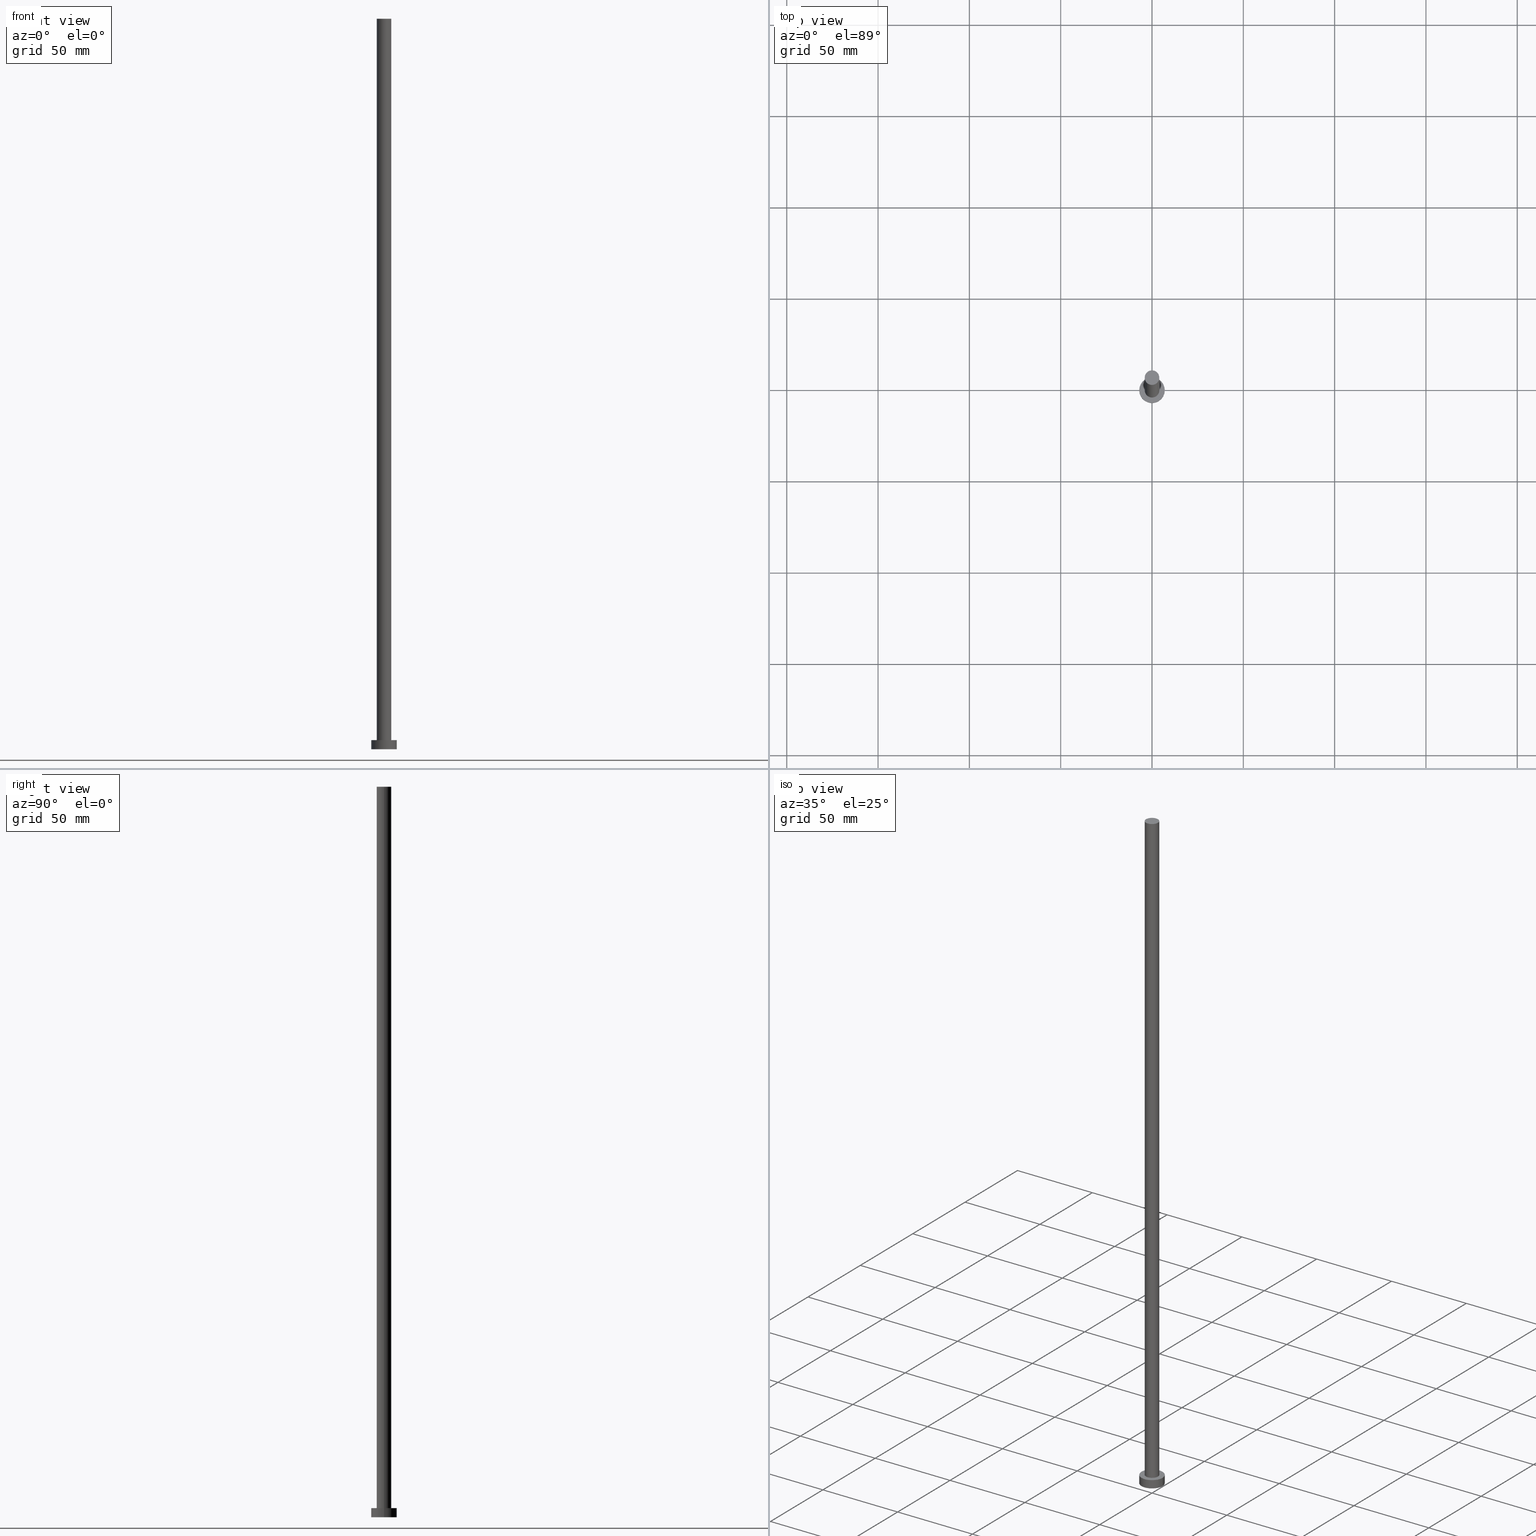
[diagram: canonical four-view strip — front | top / right | iso, engineering-drawing reading convention]
A machine part, canonical four-view strip (front | top / right | iso — engineering-drawing reading convention). The complete STEP part file that produces these views, byte-faithful:
ISO-10303-21;
HEADER;
FILE_DESCRIPTION (( 'STEP AP203' ),
    '1' );
FILE_NAME ('f1d6.STEP',
    '2023-02-13T12:56:33',
    ( '' ),
    ( '' ),
    'SwSTEP 2.0',
    'SolidWorks 2019',
    '' );
FILE_SCHEMA (( 'CONFIG_CONTROL_DESIGN' ));
ENDSEC;

DATA;
#1 = PRODUCT_DEFINITION_SHAPE ( 'NONE', 'NONE',  #43 ) ;
#2 = AXIS2_PLACEMENT_3D ( 'NONE', #251, #115, #41 ) ;
#3 = PRODUCT_RELATED_PRODUCT_CATEGORY ( 'detail', '', ( #235 ) ) ;
#4 = EDGE_CURVE ( 'NONE', #128, #30, #198, .T. ) ;
#5 = CARTESIAN_POINT ( 'NONE',  ( 0.000000000000000000, 0.000000000000000000, 0.000000000000000000 ) ) ;
#6 = DATE_AND_TIME ( #167, #226 ) ;
#7 = CARTESIAN_POINT ( 'NONE',  ( 0.000000000000000000, 0.000000000000000000, 0.000000000000000000 ) ) ;
#8 = ORIENTED_EDGE ( 'NONE', *, *, #16, .T. ) ;
#9 = EDGE_CURVE ( 'NONE', #248, #110, #234, .T. ) ;
#10 = CARTESIAN_POINT ( 'NONE',  ( 0.000000000000000000, 0.000000000000000000, 5.000000000000000000 ) ) ;
#11 = PERSON_AND_ORGANIZATION ( #82, #161 ) ;
#12 = ORIENTED_EDGE ( 'NONE', *, *, #139, .F. ) ;
#13 = CARTESIAN_POINT ( 'NONE',  ( 0.000000000000000000, 0.000000000000000000, 0.000000000000000000 ) ) ;
#14 = CARTESIAN_POINT ( 'NONE',  ( 4.000000000000000000, 4.898587196589411843E-16, 400.0000000000000000 ) ) ;
#15 = DIRECTION ( 'NONE',  ( 0.000000000000000000, 0.000000000000000000, 1.000000000000000000 ) ) ;
#16 = EDGE_CURVE ( 'NONE', #245, #30, #133, .T. ) ;
#17 = SHAPE_DEFINITION_REPRESENTATION ( #1, #181 ) ;
#18 = VECTOR ( 'NONE', #117, 1000.000000000000000 ) ;
#19 = ORIENTED_EDGE ( 'NONE', *, *, #148, .T. ) ;
#20 = LOCAL_TIME ( 13, 56, 32.00000000000000000, #239 ) ;
#21 = CARTESIAN_POINT ( 'NONE',  ( 0.000000000000000000, 0.000000000000000000, 400.0000000000000000 ) ) ;
#22 = CARTESIAN_POINT ( 'NONE',  ( 0.000000000000000000, 0.000000000000000000, 400.0000000000000000 ) ) ;
#23 = PERSON_AND_ORGANIZATION ( #82, #161 ) ;
#24 = AXIS2_PLACEMENT_3D ( 'NONE', #102, #203, #144 ) ;
#25 = COORDINATED_UNIVERSAL_TIME_OFFSET ( 1, 0, .AHEAD. ) ;
#26 = DIRECTION ( 'NONE',  ( 0.000000000000000000, 0.000000000000000000, 1.000000000000000000 ) ) ;
#27 = CARTESIAN_POINT ( 'NONE',  ( -4.000000000000000000, 0.000000000000000000, 5.000000000000000000 ) ) ;
#28 = ORIENTED_EDGE ( 'NONE', *, *, #190, .T. ) ;
#29 = AXIS2_PLACEMENT_3D ( 'NONE', #125, #164, #224 ) ;
#30 = VERTEX_POINT ( 'NONE', #44 ) ;
#31 = DIRECTION ( 'NONE',  ( 0.000000000000000000, 0.000000000000000000, 1.000000000000000000 ) ) ;
#32 = ORIENTED_EDGE ( 'NONE', *, *, #121, .T. ) ;
#33 = ADVANCED_FACE ( 'NONE', ( #74 ), #61, .T. ) ;
#34 = DIRECTION ( 'NONE',  ( 1.000000000000000000, 0.000000000000000000, 0.000000000000000000 ) ) ;
#35 = PERSON_AND_ORGANIZATION_ROLE ( 'classification_officer' ) ;
#36 = CARTESIAN_POINT ( 'NONE',  ( 0.000000000000000000, 0.000000000000000000, 5.000000000000000000 ) ) ;
#37 = ORIENTED_EDGE ( 'NONE', *, *, #155, .F. ) ;
#38 = DIRECTION ( 'NONE',  ( -1.000000000000000000, 0.000000000000000000, 0.000000000000000000 ) ) ;
#39 = CALENDAR_DATE ( 2023, 13, 2 ) ;
#40 = APPLICATION_CONTEXT ( 'configuration controlled 3d designs of mechanical parts and assemblies' ) ;
#41 = DIRECTION ( 'NONE',  ( 1.000000000000000000, 0.000000000000000000, 0.000000000000000000 ) ) ;
#42 = AXIS2_PLACEMENT_3D ( 'NONE', #5, #51, #106 ) ;
#43 = PRODUCT_DEFINITION ( 'NEZN�M�', '', #229, #243 ) ;
#44 = CARTESIAN_POINT ( 'NONE',  ( -7.000000000000000000, 0.000000000000000000, 0.000000000000000000 ) ) ;
#45 = APPROVAL ( #169, 'NEUR�EN�' ) ;
#46 = PERSON_AND_ORGANIZATION ( #82, #161 ) ;
#47 = LOCAL_TIME ( 13, 56, 32.00000000000000000, #208 ) ;
#48 = FACE_OUTER_BOUND ( 'NONE', #218, .T. ) ;
#49 = CC_DESIGN_SECURITY_CLASSIFICATION ( #53, ( #229 ) ) ;
#50 = AXIS2_PLACEMENT_3D ( 'NONE', #145, #15, #34 ) ;
#51 = DIRECTION ( 'NONE',  ( 0.000000000000000000, 0.000000000000000000, 1.000000000000000000 ) ) ;
#52 = CALENDAR_DATE ( 2023, 13, 2 ) ;
#53 = SECURITY_CLASSIFICATION ( '', '', #163 ) ;
#54 = CIRCLE ( 'NONE', #142, 7.000000000000000000 ) ;
#55 = COORDINATED_UNIVERSAL_TIME_OFFSET ( 1, 0, .AHEAD. ) ;
#56 = AXIS2_PLACEMENT_3D ( 'NONE', #22, #64, #237 ) ;
#57 = CARTESIAN_POINT ( 'NONE',  ( 0.000000000000000000, 0.000000000000000000, 400.0000000000000000 ) ) ;
#58 = CARTESIAN_POINT ( 'NONE',  ( 7.000000000000000000, 8.572527594031473190E-16, 5.000000000000000000 ) ) ;
#59 = EDGE_LOOP ( 'NONE', ( #150, #210 ) ) ;
#60 = CC_DESIGN_DATE_AND_TIME_ASSIGNMENT ( #63, #89, ( #43 ) ) ;
#61 = PLANE ( 'NONE',  #56 ) ;
#62 = MECHANICAL_CONTEXT ( 'NONE', #105, 'mechanical' ) ;
#63 = DATE_AND_TIME ( #52, #20 ) ;
#64 = DIRECTION ( 'NONE',  ( 0.000000000000000000, 0.000000000000000000, 1.000000000000000000 ) ) ;
#65 = APPROVAL_DATE_TIME ( #6, #158 ) ;
#66 = ADVANCED_FACE ( 'NONE', ( #141, #187 ), #188, .T. ) ;
#67 = CARTESIAN_POINT ( 'NONE',  ( -7.000000000000000000, 0.000000000000000000, 5.000000000000000000 ) ) ;
#68 = CC_DESIGN_APPROVAL ( #158, ( #43 ) ) ;
#69 = DATE_AND_TIME ( #108, #47 ) ;
#70 = ORIENTED_EDGE ( 'NONE', *, *, #190, .F. ) ;
#71 = ORIENTED_EDGE ( 'NONE', *, *, #206, .T. ) ;
#72 = EDGE_LOOP ( 'NONE', ( #119, #254, #189, #157 ) ) ;
#73 = LINE ( 'NONE', #230, #255 ) ;
#74 = FACE_OUTER_BOUND ( 'NONE', #59, .T. ) ;
#75 = ADVANCED_FACE ( 'NONE', ( #123 ), #86, .T. ) ;
#76 = CYLINDRICAL_SURFACE ( 'NONE', #197, 7.000000000000000000 ) ;
#77 = MANIFOLD_SOLID_BREP ( 'P�idat vysunut�m3', #107 ) ;
#78 = EDGE_LOOP ( 'NONE', ( #136, #242, #140, #199 ) ) ;
#79 = ORIENTED_EDGE ( 'NONE', *, *, #83, .F. ) ;
#80 = DIRECTION ( 'NONE',  ( -0.000000000000000000, -0.000000000000000000, -1.000000000000000000 ) ) ;
#81 = CIRCLE ( 'NONE', #221, 7.000000000000000000 ) ;
#82 = PERSON ( 'NEUR�EN�', 'NEUR�EN�', 'NEUR�EN�', ('NEUR�EN�'), ('NEUR�EN�'), ('NEUR�EN�') ) ;
#83 = EDGE_CURVE ( 'NONE', #124, #177, #213, .T. ) ;
#84 = AXIS2_PLACEMENT_3D ( 'NONE', #194, #253, #151 ) ;
#85 = APPLICATION_PROTOCOL_DEFINITION ( 'international standard', 'config_control_design', 1994, #105 ) ;
#86 = CYLINDRICAL_SURFACE ( 'NONE', #29, 4.000000000000000000 ) ;
#87 = APPLICATION_PROTOCOL_DEFINITION ( 'international standard', 'config_control_design', 1994, #40 ) ;
#88 = CARTESIAN_POINT ( 'NONE',  ( 0.000000000000000000, 0.000000000000000000, 5.000000000000000000 ) ) ;
#89 = DATE_TIME_ROLE ( 'creation_date' ) ;
#90 = EDGE_LOOP ( 'NONE', ( #79, #113 ) ) ;
#91 = DIRECTION ( 'NONE',  ( 0.000000000000000000, 0.000000000000000000, 1.000000000000000000 ) ) ;
#92 = AXIS2_PLACEMENT_3D ( 'NONE', #88, #26, #205 ) ;
#93 = FACE_OUTER_BOUND ( 'NONE', #78, .T. ) ;
#94 = CC_DESIGN_DATE_AND_TIME_ASSIGNMENT ( #152, #232, ( #53 ) ) ;
#95 = DIRECTION ( 'NONE',  ( -0.000000000000000000, -0.000000000000000000, -1.000000000000000000 ) ) ;
#96 = VERTEX_POINT ( 'NONE', #104 ) ;
#97 = CARTESIAN_POINT ( 'NONE',  ( -7.000000000000000000, 0.000000000000000000, 5.000000000000000000 ) ) ;
#98 = VECTOR ( 'NONE', #95, 1000.000000000000000 ) ;
#99 = ADVANCED_FACE ( 'NONE', ( #48 ), #185, .F. ) ;
#100 = DIRECTION ( 'NONE',  ( 1.000000000000000000, 0.000000000000000000, 0.000000000000000000 ) ) ;
#101 = PERSON_AND_ORGANIZATION ( #82, #161 ) ;
#102 = CARTESIAN_POINT ( 'NONE',  ( 0.000000000000000000, 0.000000000000000000, 5.000000000000000000 ) ) ;
#103 = PERSON_AND_ORGANIZATION ( #82, #161 ) ;
#104 = CARTESIAN_POINT ( 'NONE',  ( 7.000000000000000000, 8.572527594031473190E-16, 5.000000000000000000 ) ) ;
#105 = APPLICATION_CONTEXT ( 'configuration controlled 3d designs of mechanical parts and assemblies' ) ;
#106 = DIRECTION ( 'NONE',  ( 1.000000000000000000, 0.000000000000000000, 0.000000000000000000 ) ) ;
#107 = CLOSED_SHELL ( 'NONE', ( #171, #216, #154, #66, #99, #75, #33 ) ) ;
#108 = CALENDAR_DATE ( 2023, 13, 2 ) ;
#109 = CC_DESIGN_PERSON_AND_ORGANIZATION_ASSIGNMENT ( #11, #244, ( #43 ) ) ;
#110 = VERTEX_POINT ( 'NONE', #143 ) ;
#111 =( LENGTH_UNIT ( ) NAMED_UNIT ( * ) SI_UNIT ( .MILLI., .METRE. ) );
#112 = APPROVAL ( #131, 'NEUR�EN�' ) ;
#113 = ORIENTED_EDGE ( 'NONE', *, *, #233, .F. ) ;
#114 = CARTESIAN_POINT ( 'NONE',  ( 7.000000000000000000, 8.572527594031473190E-16, 0.000000000000000000 ) ) ;
#115 = DIRECTION ( 'NONE',  ( 0.000000000000000000, 0.000000000000000000, 1.000000000000000000 ) ) ;
#116 = PERSON_AND_ORGANIZATION ( #82, #161 ) ;
#117 = DIRECTION ( 'NONE',  ( -0.000000000000000000, -0.000000000000000000, -1.000000000000000000 ) ) ;
#118 = LOCAL_TIME ( 13, 56, 32.00000000000000000, #178 ) ;
#119 = ORIENTED_EDGE ( 'NONE', *, *, #206, .F. ) ;
#120 = CIRCLE ( 'NONE', #50, 4.000000000000000000 ) ;
#121 = EDGE_CURVE ( 'NONE', #128, #96, #231, .T. ) ;
#122 = PERSON_AND_ORGANIZATION_ROLE ( 'creator' ) ;
#123 = FACE_OUTER_BOUND ( 'NONE', #72, .T. ) ;
#124 = VERTEX_POINT ( 'NONE', #27 ) ;
#125 = CARTESIAN_POINT ( 'NONE',  ( 0.000000000000000000, 0.000000000000000000, 400.0000000000000000 ) ) ;
#126 = CC_DESIGN_APPROVAL ( #45, ( #229 ) ) ;
#127 = APPROVAL_ROLE ( '' ) ;
#128 = VERTEX_POINT ( 'NONE', #67 ) ;
#129 = ORIENTED_EDGE ( 'NONE', *, *, #4, .F. ) ;
#130 = DIRECTION ( 'NONE',  ( 1.000000000000000000, 0.000000000000000000, 0.000000000000000000 ) ) ;
#131 = APPROVAL_STATUS ( 'not_yet_approved' ) ;
#132 = LINE ( 'NONE', #58, #18 ) ;
#133 = CIRCLE ( 'NONE', #246, 7.000000000000000000 ) ;
#134 = LINE ( 'NONE', #14, #98 ) ;
#135 = CARTESIAN_POINT ( 'NONE',  ( 0.000000000000000000, 0.000000000000000000, 0.000000000000000000 ) ) ;
#136 = ORIENTED_EDGE ( 'NONE', *, *, #148, .F. ) ;
#137 = VECTOR ( 'NONE', #80, 1000.000000000000000 ) ;
#138 = CC_DESIGN_PERSON_AND_ORGANIZATION_ASSIGNMENT ( #238, #35, ( #53 ) ) ;
#139 = EDGE_CURVE ( 'NONE', #110, #248, #120, .T. ) ;
#140 = ORIENTED_EDGE ( 'NONE', *, *, #4, .T. ) ;
#141 = FACE_BOUND ( 'NONE', #90, .T. ) ;
#142 = AXIS2_PLACEMENT_3D ( 'NONE', #36, #31, #212 ) ;
#143 = CARTESIAN_POINT ( 'NONE',  ( 4.000000000000000000, 4.898587196589411843E-16, 400.0000000000000000 ) ) ;
#144 = DIRECTION ( 'NONE',  ( 1.000000000000000000, 0.000000000000000000, -0.000000000000000000 ) ) ;
#145 = CARTESIAN_POINT ( 'NONE',  ( 0.000000000000000000, 0.000000000000000000, 400.0000000000000000 ) ) ;
#146 = DATE_AND_TIME ( #39, #118 ) ;
#147 = CYLINDRICAL_SURFACE ( 'NONE', #236, 4.000000000000000000 ) ;
#148 = EDGE_CURVE ( 'NONE', #96, #245, #132, .T. ) ;
#149 = DIRECTION ( 'NONE',  ( -0.000000000000000000, -0.000000000000000000, -1.000000000000000000 ) ) ;
#150 = ORIENTED_EDGE ( 'NONE', *, *, #9, .T. ) ;
#151 = DIRECTION ( 'NONE',  ( -1.000000000000000000, 0.000000000000000000, 0.000000000000000000 ) ) ;
#152 = DATE_AND_TIME ( #172, #193 ) ;
#153 = DIRECTION ( 'NONE',  ( 0.000000000000000000, 0.000000000000000000, 1.000000000000000000 ) ) ;
#154 = ADVANCED_FACE ( 'NONE', ( #93 ), #249, .T. ) ;
#155 = EDGE_CURVE ( 'NONE', #30, #245, #81, .T. ) ;
#156 = DIRECTION ( 'NONE',  ( -1.000000000000000000, 0.000000000000000000, 0.000000000000000000 ) ) ;
#157 = ORIENTED_EDGE ( 'NONE', *, *, #83, .T. ) ;
#158 = APPROVAL ( #184, 'NEUR�EN�' ) ;
#159 = EDGE_LOOP ( 'NONE', ( #70, #19, #8, #129 ) ) ;
#160 = DIRECTION ( 'NONE',  ( 0.000000000000000000, 0.000000000000000000, 1.000000000000000000 ) ) ;
#161 = ORGANIZATION ( 'NEUR�EN�', 'NEUR�EN�', '' ) ;
#162 = CC_DESIGN_PERSON_AND_ORGANIZATION_ASSIGNMENT ( #46, #122, ( #229 ) ) ;
#163 = SECURITY_CLASSIFICATION_LEVEL ( 'unclassified' ) ;
#164 = DIRECTION ( 'NONE',  ( -0.000000000000000000, -0.000000000000000000, -1.000000000000000000 ) ) ;
#165 = AXIS2_PLACEMENT_3D ( 'NONE', #21, #160, #100 ) ;
#166 = EDGE_LOOP ( 'NONE', ( #32, #28 ) ) ;
#167 = CALENDAR_DATE ( 2023, 13, 2 ) ;
#168 = DIRECTION ( 'NONE',  ( 0.000000000000000000, 0.000000000000000000, 1.000000000000000000 ) ) ;
#169 = APPROVAL_STATUS ( 'not_yet_approved' ) ;
#170 = ORIENTED_EDGE ( 'NONE', *, *, #233, .T. ) ;
#171 = ADVANCED_FACE ( 'NONE', ( #175 ), #147, .T. ) ;
#172 = CALENDAR_DATE ( 2023, 13, 2 ) ;
#173 = UNCERTAINTY_MEASURE_WITH_UNIT (LENGTH_MEASURE( 1.000000000000000082E-05 ), #111, 'distance_accuracy_value', 'NONE');
#174 = CARTESIAN_POINT ( 'NONE',  ( 0.000000000000000000, 0.000000000000000000, 5.000000000000000000 ) ) ;
#175 = FACE_OUTER_BOUND ( 'NONE', #252, .T. ) ;
#176 = AXIS2_PLACEMENT_3D ( 'NONE', #7, #168, #207 ) ;
#177 = VERTEX_POINT ( 'NONE', #211 ) ;
#178 = COORDINATED_UNIVERSAL_TIME_OFFSET ( 1, 0, .AHEAD. ) ;
#179 = APPROVAL_PERSON_ORGANIZATION ( #116, #112, #195 ) ;
#180 = CIRCLE ( 'NONE', #2, 4.000000000000000000 ) ;
#181 = ADVANCED_BREP_SHAPE_REPRESENTATION ( 'f1d6', ( #77, #42 ), #217 ) ;
#182 = DIRECTION ( 'NONE',  ( 1.000000000000000000, 0.000000000000000000, 0.000000000000000000 ) ) ;
#183 = PERSON_AND_ORGANIZATION_ROLE ( 'design_supplier' ) ;
#184 = APPROVAL_STATUS ( 'not_yet_approved' ) ;
#185 = PLANE ( 'NONE',  #176 ) ;
#186 = EDGE_CURVE ( 'NONE', #248, #124, #73, .T. ) ;
#187 = FACE_OUTER_BOUND ( 'NONE', #166, .T. ) ;
#188 = PLANE ( 'NONE',  #24 ) ;
#189 = ORIENTED_EDGE ( 'NONE', *, *, #186, .T. ) ;
#190 = EDGE_CURVE ( 'NONE', #96, #128, #54, .T. ) ;
#191 =( NAMED_UNIT ( * ) PLANE_ANGLE_UNIT ( ) SI_UNIT ( $, .RADIAN. ) );
#192 = APPROVAL_PERSON_ORGANIZATION ( #23, #45, #127 ) ;
#193 = LOCAL_TIME ( 13, 56, 32.00000000000000000, #55 ) ;
#194 = CARTESIAN_POINT ( 'NONE',  ( 0.000000000000000000, 0.000000000000000000, 5.000000000000000000 ) ) ;
#195 = APPROVAL_ROLE ( '' ) ;
#196 = CARTESIAN_POINT ( 'NONE',  ( -4.000000000000000000, 0.000000000000000000, 400.0000000000000000 ) ) ;
#197 = AXIS2_PLACEMENT_3D ( 'NONE', #174, #149, #38 ) ;
#198 = LINE ( 'NONE', #97, #137 ) ;
#199 = ORIENTED_EDGE ( 'NONE', *, *, #155, .T. ) ;
#200 = CC_DESIGN_PERSON_AND_ORGANIZATION_ASSIGNMENT ( #223, #225, ( #235 ) ) ;
#201 = CC_DESIGN_PERSON_AND_ORGANIZATION_ASSIGNMENT ( #101, #183, ( #229 ) ) ;
#202 = AXIS2_PLACEMENT_3D ( 'NONE', #10, #220, #222 ) ;
#203 = DIRECTION ( 'NONE',  ( 0.000000000000000000, 0.000000000000000000, 1.000000000000000000 ) ) ;
#204 = APPROVAL_ROLE ( '' ) ;
#205 = DIRECTION ( 'NONE',  ( 1.000000000000000000, 0.000000000000000000, 0.000000000000000000 ) ) ;
#206 = EDGE_CURVE ( 'NONE', #110, #177, #134, .T. ) ;
#207 = DIRECTION ( 'NONE',  ( 1.000000000000000000, 0.000000000000000000, -0.000000000000000000 ) ) ;
#208 = COORDINATED_UNIVERSAL_TIME_OFFSET ( 1, 0, .AHEAD. ) ;
#209 = DIRECTION ( 'NONE',  ( -0.000000000000000000, -0.000000000000000000, -1.000000000000000000 ) ) ;
#210 = ORIENTED_EDGE ( 'NONE', *, *, #139, .T. ) ;
#211 = CARTESIAN_POINT ( 'NONE',  ( 4.000000000000000000, 4.898587196589411843E-16, 5.000000000000000000 ) ) ;
#212 = DIRECTION ( 'NONE',  ( 1.000000000000000000, 0.000000000000000000, 0.000000000000000000 ) ) ;
#213 = CIRCLE ( 'NONE', #202, 4.000000000000000000 ) ;
#214 = ORIENTED_EDGE ( 'NONE', *, *, #16, .F. ) ;
#215 = FACE_OUTER_BOUND ( 'NONE', #159, .T. ) ;
#216 = ADVANCED_FACE ( 'NONE', ( #215 ), #76, .T. ) ;
#217 =( GEOMETRIC_REPRESENTATION_CONTEXT ( 3 ) GLOBAL_UNCERTAINTY_ASSIGNED_CONTEXT ( ( #173 ) ) GLOBAL_UNIT_ASSIGNED_CONTEXT ( ( #111, #191, #241 ) ) REPRESENTATION_CONTEXT ( 'NONE', 'WORKASPACE' ) );
#218 = EDGE_LOOP ( 'NONE', ( #37, #214 ) ) ;
#219 = APPROVAL_DATE_TIME ( #69, #45 ) ;
#220 = DIRECTION ( 'NONE',  ( 0.000000000000000000, 0.000000000000000000, 1.000000000000000000 ) ) ;
#221 = AXIS2_PLACEMENT_3D ( 'NONE', #13, #91, #130 ) ;
#222 = DIRECTION ( 'NONE',  ( 1.000000000000000000, 0.000000000000000000, 0.000000000000000000 ) ) ;
#223 = PERSON_AND_ORGANIZATION ( #82, #161 ) ;
#224 = DIRECTION ( 'NONE',  ( -1.000000000000000000, 0.000000000000000000, 0.000000000000000000 ) ) ;
#225 = PERSON_AND_ORGANIZATION_ROLE ( 'design_owner' ) ;
#226 = LOCAL_TIME ( 13, 56, 32.00000000000000000, #25 ) ;
#227 = ORIENTED_EDGE ( 'NONE', *, *, #186, .F. ) ;
#228 = DIRECTION ( 'NONE',  ( -0.000000000000000000, -0.000000000000000000, -1.000000000000000000 ) ) ;
#229 = PRODUCT_DEFINITION_FORMATION_WITH_SPECIFIED_SOURCE ( 'LIBOVOLN�', '', #235, .NOT_KNOWN. ) ;
#230 = CARTESIAN_POINT ( 'NONE',  ( -4.000000000000000000, 0.000000000000000000, 400.0000000000000000 ) ) ;
#231 = CIRCLE ( 'NONE', #92, 7.000000000000000000 ) ;
#232 = DATE_TIME_ROLE ( 'classification_date' ) ;
#233 = EDGE_CURVE ( 'NONE', #177, #124, #180, .T. ) ;
#234 = CIRCLE ( 'NONE', #165, 4.000000000000000000 ) ;
#235 = PRODUCT ( 'f1d6', 'f1d6', '', ( #62 ) ) ;
#236 = AXIS2_PLACEMENT_3D ( 'NONE', #57, #228, #156 ) ;
#237 = DIRECTION ( 'NONE',  ( 1.000000000000000000, 0.000000000000000000, -0.000000000000000000 ) ) ;
#238 = PERSON_AND_ORGANIZATION ( #82, #161 ) ;
#239 = COORDINATED_UNIVERSAL_TIME_OFFSET ( 1, 0, .AHEAD. ) ;
#240 = CC_DESIGN_APPROVAL ( #112, ( #53 ) ) ;
#241 =( NAMED_UNIT ( * ) SI_UNIT ( $, .STERADIAN. ) SOLID_ANGLE_UNIT ( ) );
#242 = ORIENTED_EDGE ( 'NONE', *, *, #121, .F. ) ;
#243 = DESIGN_CONTEXT ( 'detailed design', #40, 'design' ) ;
#244 = PERSON_AND_ORGANIZATION_ROLE ( 'creator' ) ;
#245 = VERTEX_POINT ( 'NONE', #114 ) ;
#246 = AXIS2_PLACEMENT_3D ( 'NONE', #135, #153, #182 ) ;
#247 = APPROVAL_DATE_TIME ( #146, #112 ) ;
#248 = VERTEX_POINT ( 'NONE', #196 ) ;
#249 = CYLINDRICAL_SURFACE ( 'NONE', #84, 7.000000000000000000 ) ;
#250 = APPROVAL_PERSON_ORGANIZATION ( #103, #158, #204 ) ;
#251 = CARTESIAN_POINT ( 'NONE',  ( 0.000000000000000000, 0.000000000000000000, 5.000000000000000000 ) ) ;
#252 = EDGE_LOOP ( 'NONE', ( #12, #71, #170, #227 ) ) ;
#253 = DIRECTION ( 'NONE',  ( -0.000000000000000000, -0.000000000000000000, -1.000000000000000000 ) ) ;
#254 = ORIENTED_EDGE ( 'NONE', *, *, #9, .F. ) ;
#255 = VECTOR ( 'NONE', #209, 1000.000000000000000 ) ;
ENDSEC;
END-ISO-10303-21;
